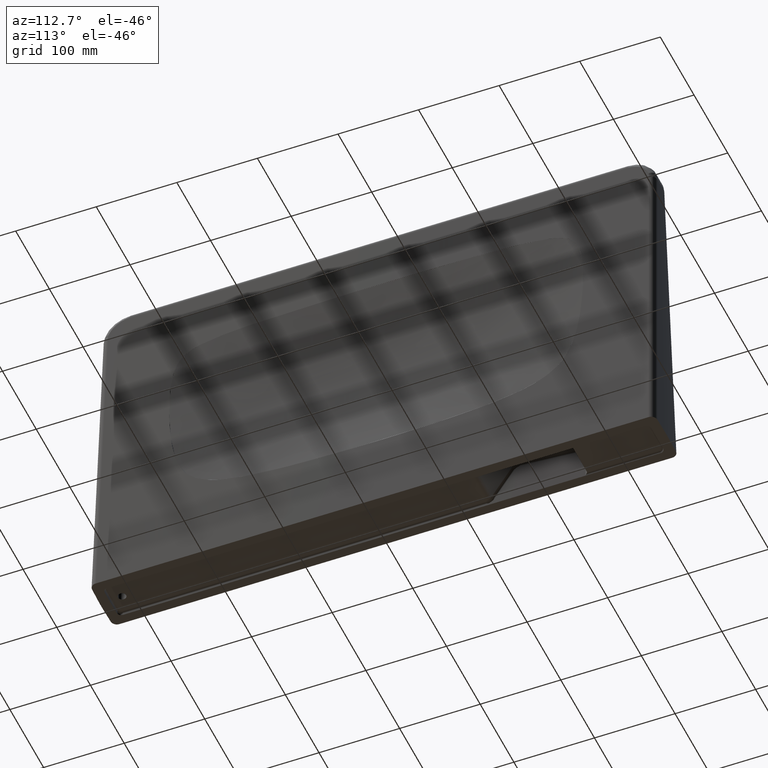
[diagram: clean part render]
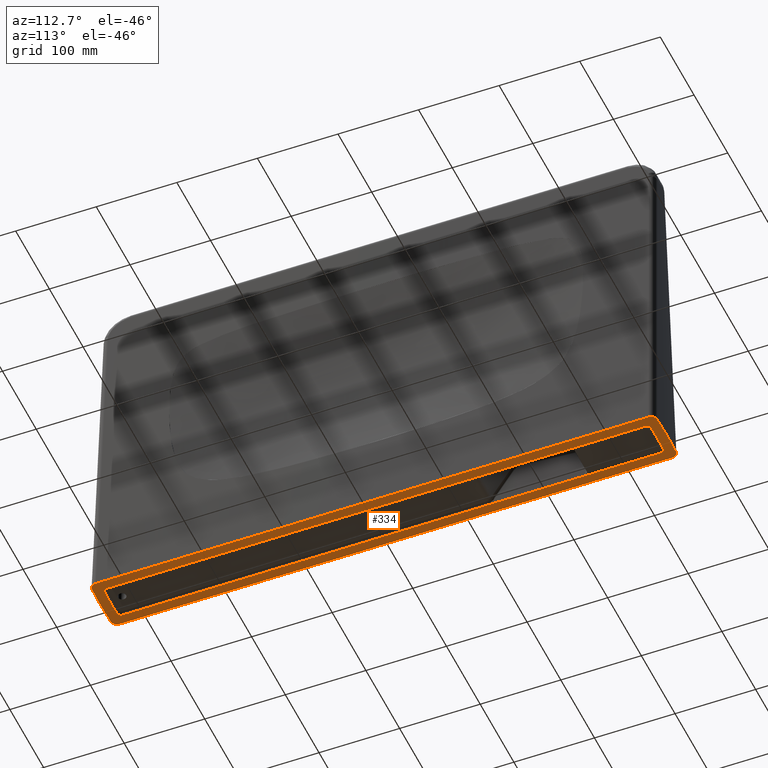
[diagram: same view with one face highlighted and labeled with its STEP entity id]
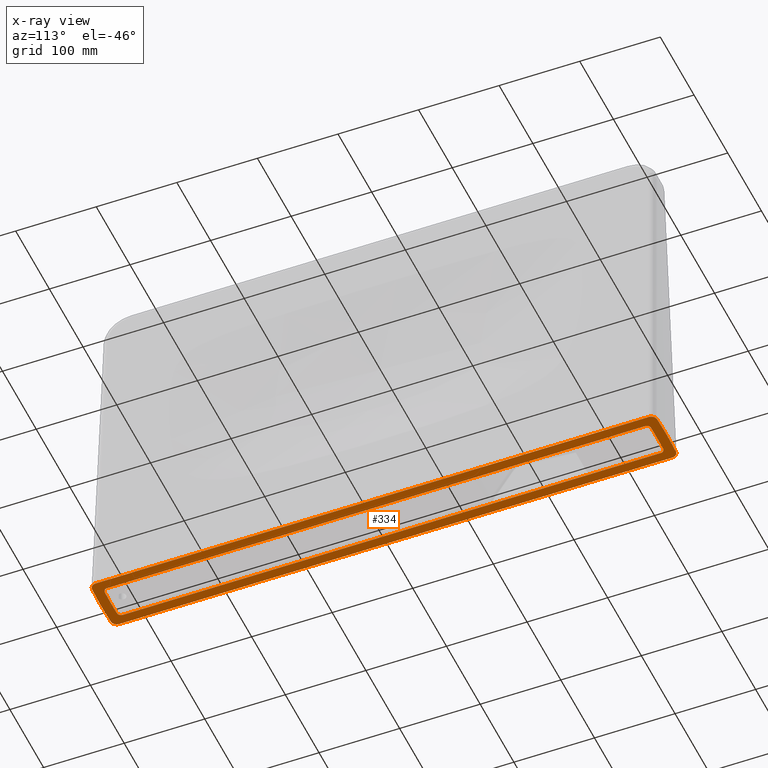
[diagram: x-ray of the same camera — body ghosted, the highlighted face saturated]
A machine part, auxiliary view. The second image highlights one B-rep face of the part: STEP entity #334.
The next image is the same camera in x-ray: the body ghosted, the highlighted face saturated — about 0% of this face is hidden behind the body in this view.
In plain terms, the highlighted planar face has unit normal (0, 0, -1).
Its self-contained STEP definition (entity closure, byte-faithful):
#195=FACE_BOUND('',#598,.T.);
#196=FACE_BOUND('',#599,.T.);
#214=B_SPLINE_CURVE_WITH_KNOTS('',3,(#2850,#2851,#2852,#2853),
 .UNSPECIFIED.,.F.,.F.,(4,4),(0.,1.),.UNSPECIFIED.);
#216=B_SPLINE_CURVE_WITH_KNOTS('',3,(#2997,#2998,#2999,#3000),
 .UNSPECIFIED.,.F.,.F.,(4,4),(0.,1.),.UNSPECIFIED.);
#236=CIRCLE('',#2009,5.);
#238=CIRCLE('',#2014,5.);
#242=CIRCLE('',#2042,5.);
#243=CIRCLE('',#2043,5.);
#334=ADVANCED_FACE('',(#195,#196),#452,.T.);
#452=PLANE('',#2044);
#598=EDGE_LOOP('',(#852,#853,#854,#855,#856,#857,#858,#859,#860,#861,#862,
#863));
#599=EDGE_LOOP('',(#864,#865,#866,#867,#868,#869,#870,#871,#872,#873,#874,
#875));
#729=ELLIPSE('',#2032,350.061613808211,350.);
#732=ELLIPSE('',#2037,7.50830832568396,7.5);
#733=ELLIPSE('',#2038,7.50830832568396,7.5);
#734=ELLIPSE('',#2039,350.061613808211,350.);
#735=ELLIPSE('',#2040,7.50830832568396,7.5);
#736=ELLIPSE('',#2041,7.50830832568396,7.5);
#852=ORIENTED_EDGE('',*,*,#1543,.T.);
#853=ORIENTED_EDGE('',*,*,#1558,.T.);
#854=ORIENTED_EDGE('',*,*,#1559,.F.);
#855=ORIENTED_EDGE('',*,*,#1560,.T.);
#856=ORIENTED_EDGE('',*,*,#1561,.T.);
#857=ORIENTED_EDGE('',*,*,#1562,.T.);
#858=ORIENTED_EDGE('',*,*,#1563,.F.);
#859=ORIENTED_EDGE('',*,*,#1564,.T.);
#860=ORIENTED_EDGE('',*,*,#1565,.T.);
#861=ORIENTED_EDGE('',*,*,#1566,.T.);
#862=ORIENTED_EDGE('',*,*,#1547,.F.);
#863=ORIENTED_EDGE('',*,*,#1555,.T.);
#864=ORIENTED_EDGE('',*,*,#1567,.T.);
#865=ORIENTED_EDGE('',*,*,#1568,.T.);
#866=ORIENTED_EDGE('',*,*,#1569,.T.);
#867=ORIENTED_EDGE('',*,*,#1570,.T.);
#868=ORIENTED_EDGE('',*,*,#1571,.T.);
#869=ORIENTED_EDGE('',*,*,#1486,.T.);
#870=ORIENTED_EDGE('',*,*,#1499,.T.);
#871=ORIENTED_EDGE('',*,*,#1502,.T.);
#872=ORIENTED_EDGE('',*,*,#1505,.T.);
#873=ORIENTED_EDGE('',*,*,#1508,.T.);
#874=ORIENTED_EDGE('',*,*,#1511,.T.);
#875=ORIENTED_EDGE('',*,*,#1524,.T.);
#1324=VERTEX_POINT('',#2808);
#1325=VERTEX_POINT('',#2810);
#1336=VERTEX_POINT('',#2834);
#1338=VERTEX_POINT('',#2840);
#1340=VERTEX_POINT('',#2849);
#1342=VERTEX_POINT('',#2865);
#1344=VERTEX_POINT('',#2871);
#1356=VERTEX_POINT('',#2897);
#1366=VERTEX_POINT('',#2929);
#1375=VERTEX_POINT('',#2946);
#1379=VERTEX_POINT('',#2955);
#1380=VERTEX_POINT('',#2957);
#1386=VERTEX_POINT('',#2977);
#1387=VERTEX_POINT('',#2979);
#1388=VERTEX_POINT('',#2981);
#1389=VERTEX_POINT('',#2983);
#1390=VERTEX_POINT('',#2985);
#1391=VERTEX_POINT('',#2987);
#1392=VERTEX_POINT('',#2989);
#1393=VERTEX_POINT('',#2991);
#1394=VERTEX_POINT('',#2994);
#1395=VERTEX_POINT('',#2996);
#1396=VERTEX_POINT('',#3001);
#1397=VERTEX_POINT('',#3003);
#1486=EDGE_CURVE('',#1325,#1324,#1763,.T.);
#1499=EDGE_CURVE('',#1324,#1336,#236,.T.);
#1502=EDGE_CURVE('',#1336,#1338,#1773,.T.);
#1505=EDGE_CURVE('',#1338,#1340,#214,.T.);
#1508=EDGE_CURVE('',#1340,#1342,#1777,.T.);
#1511=EDGE_CURVE('',#1342,#1344,#238,.T.);
#1524=EDGE_CURVE('',#1344,#1356,#1787,.T.);
#1543=EDGE_CURVE('',#1366,#1375,#1800,.T.);
#1547=EDGE_CURVE('',#1379,#1380,#1803,.T.);
#1555=EDGE_CURVE('',#1379,#1366,#729,.T.);
#1558=EDGE_CURVE('',#1375,#1386,#732,.T.);
#1559=EDGE_CURVE('',#1387,#1386,#1809,.T.);
#1560=EDGE_CURVE('',#1387,#1388,#733,.T.);
#1561=EDGE_CURVE('',#1388,#1389,#1810,.T.);
#1562=EDGE_CURVE('',#1389,#1390,#734,.T.);
#1563=EDGE_CURVE('',#1391,#1390,#1811,.T.);
#1564=EDGE_CURVE('',#1391,#1392,#735,.T.);
#1565=EDGE_CURVE('',#1392,#1393,#1812,.T.);
#1566=EDGE_CURVE('',#1393,#1380,#736,.T.);
#1567=EDGE_CURVE('',#1356,#1394,#242,.T.);
#1568=EDGE_CURVE('',#1394,#1395,#1813,.T.);
#1569=EDGE_CURVE('',#1395,#1396,#216,.T.);
#1570=EDGE_CURVE('',#1396,#1397,#1814,.T.);
#1571=EDGE_CURVE('',#1397,#1325,#243,.T.);
#1763=LINE('',#2809,#1884);
#1773=LINE('',#2841,#1894);
#1777=LINE('',#2866,#1898);
#1787=LINE('',#2898,#1908);
#1800=LINE('',#2947,#1921);
#1803=LINE('',#2956,#1924);
#1809=LINE('',#2978,#1930);
#1810=LINE('',#2982,#1931);
#1811=LINE('',#2986,#1932);
#1812=LINE('',#2990,#1933);
#1813=LINE('',#2995,#1934);
#1814=LINE('',#3002,#1935);
#1884=VECTOR('',#2233,1.);
#1894=VECTOR('',#2259,1.);
#1898=VECTOR('',#2265,1.);
#1908=VECTOR('',#2291,1.);
#1921=VECTOR('',#2318,1.);
#1924=VECTOR('',#2325,1.);
#1930=VECTOR('',#2349,1.);
#1931=VECTOR('',#2352,1.);
#1932=VECTOR('',#2355,1.);
#1933=VECTOR('',#2358,1.);
#1934=VECTOR('',#2363,1.);
#1935=VECTOR('',#2364,1.);
#2009=AXIS2_PLACEMENT_3D('',#2835,#2253,#2254);
#2014=AXIS2_PLACEMENT_3D('',#2872,#2271,#2272);
#2032=AXIS2_PLACEMENT_3D('',#2971,#2337,#2338);
#2037=AXIS2_PLACEMENT_3D('',#2976,#2347,#2348);
#2038=AXIS2_PLACEMENT_3D('',#2980,#2350,#2351);
#2039=AXIS2_PLACEMENT_3D('',#2984,#2353,#2354);
#2040=AXIS2_PLACEMENT_3D('',#2988,#2356,#2357);
#2041=AXIS2_PLACEMENT_3D('',#2992,#2359,#2360);
#2042=AXIS2_PLACEMENT_3D('',#2993,#2361,#2362);
#2043=AXIS2_PLACEMENT_3D('',#3004,#2365,#2366);
#2044=AXIS2_PLACEMENT_3D('',#3005,#2367,#2368);
#2233=DIRECTION('',(-1.03900545124596E-016,1.,0.));
#2253=DIRECTION('',(0.,0.,1.));
#2254=DIRECTION('',(1.,0.,0.));
#2259=DIRECTION('',(-0.999657204378326,0.0261815533250038,0.));
#2265=DIRECTION('',(-0.999657204378326,-0.0261815533250037,0.));
#2271=DIRECTION('',(0.,0.,1.));
#2272=DIRECTION('',(1.,0.,0.));
#2291=DIRECTION('',(-1.09095572380826E-016,-1.,0.));
#2318=DIRECTION('',(-0.999657204378326,0.0261815533250036,0.));
#2325=DIRECTION('',(0.999657204378326,0.0261815533250036,0.));
#2337=DIRECTION('',(0.,0.,-1.));
#2338=DIRECTION('',(0.,1.,0.));
#2347=DIRECTION('',(0.,0.,-1.));
#2348=DIRECTION('',(0.927324525944989,0.374258231146493,0.));
#2349=DIRECTION('',(-1.01414603210952E-016,-1.,0.));
#2350=DIRECTION('',(0.,0.,-1.));
#2351=DIRECTION('',(-0.927324525944989,0.374258231146493,0.));
#2352=DIRECTION('',(0.999657204378326,0.0261815533250036,0.));
#2353=DIRECTION('',(0.,0.,-1.));
#2354=DIRECTION('',(0.,-1.,0.));
#2355=DIRECTION('',(-0.999657204378326,0.0261815533250036,0.));
#2356=DIRECTION('',(0.,0.,-1.));
#2357=DIRECTION('',(0.927324525944989,0.374258231146493,0.));
#2358=DIRECTION('',(1.01414603210952E-016,-1.,0.));
#2359=DIRECTION('',(0.,0.,-1.));
#2360=DIRECTION('',(-0.927324525944989,0.374258231146493,0.));
#2361=DIRECTION('',(0.,0.,1.));
#2362=DIRECTION('',(1.,0.,0.));
#2363=DIRECTION('',(0.999657204378326,-0.0261815533250088,0.));
#2364=DIRECTION('',(0.999657204378326,0.0261815533250088,0.));
#2365=DIRECTION('',(0.,0.,1.));
#2366=DIRECTION('',(1.,0.,0.));
#2367=DIRECTION('',(0.,0.,-1.));
#2368=DIRECTION('',(-1.,0.,0.));
#2808=CARTESIAN_POINT('',(123.926083665237,40.4199951061946,-25.));
#2809=CARTESIAN_POINT('',(123.926083665237,-627.419995106194,-25.));
#2810=CARTESIAN_POINT('',(123.926083665237,-627.419995106194,-25.));
#2834=CARTESIAN_POINT('',(119.056991431862,45.4182811280862,-25.));
#2835=CARTESIAN_POINT('',(118.926083665237,40.4199951061946,-25.));
#2840=CARTESIAN_POINT('',(109.722753267856,45.6627497851107,-25.));
#2841=CARTESIAN_POINT('',(119.056991431862,45.4182811280862,-25.));
#2849=CARTESIAN_POINT('',(92.0272467321446,45.6627497851107,-25.));
#2850=CARTESIAN_POINT('',(109.722753267856,45.6627497851114,-25.0000000000195));
#2851=CARTESIAN_POINT('',(103.826272306249,45.8171817542943,-25.0000000000195));
#2852=CARTESIAN_POINT('',(97.9237276934547,45.8171817544509,-25.0000000000195));
#2853=CARTESIAN_POINT('',(92.0272467321446,45.6627497851114,-25.0000000000195));
#2865=CARTESIAN_POINT('',(82.6930085681376,45.4182811280862,-25.));
#2866=CARTESIAN_POINT('',(92.0272467321444,45.6627497851107,-25.));
#2871=CARTESIAN_POINT('',(77.8239163347626,40.4199951061946,-25.));
#2872=CARTESIAN_POINT('',(82.8239163347626,40.4199951061946,-25.));
#2897=CARTESIAN_POINT('',(77.8239163347625,-627.419995106195,-25.));
#2898=CARTESIAN_POINT('',(77.8239163347626,40.4199951061946,-25.));
#2929=CARTESIAN_POINT('',(91.7130680922444,-644.658636237651,-25.));
#2946=CARTESIAN_POINT('',(73.1285929497249,-644.171898959282,-25.));
#2947=CARTESIAN_POINT('',(85.559638659314,-644.497474651334,-25.));
#2955=CARTESIAN_POINT('',(110.036931907756,-644.658636237651,-25.));
#2956=CARTESIAN_POINT('',(61.59333817091,-645.927399696885,-25.));
#2957=CARTESIAN_POINT('',(128.621407050275,-644.171898959282,-25.));
#2971=CARTESIAN_POINT('',(100.875,-294.716979801507,-25.));
#2976=CARTESIAN_POINT('',(73.3310614734875,-636.673310025336,-25.));
#2977=CARTESIAN_POINT('',(65.8239163347625,-636.679074683376,-25.));
#2978=CARTESIAN_POINT('',(65.8239163347625,-618.5,-25.));
#2979=CARTESIAN_POINT('',(65.8239163347626,49.6790746833766,-25.));
#2980=CARTESIAN_POINT('',(73.3310614734875,49.6733100253362,-25.));
#2981=CARTESIAN_POINT('',(73.1285929497249,57.1718989592816,-25.));
#2982=CARTESIAN_POINT('',(43.1993237657999,56.3880354972015,-25.));
#2983=CARTESIAN_POINT('',(91.7130680922444,57.6586362376506,-25.));
#2984=CARTESIAN_POINT('',(100.875,-292.283020198493,-25.));
#2985=CARTESIAN_POINT('',(110.036931907756,57.6586362376506,-25.));
#2986=CARTESIAN_POINT('',(136.548043845877,56.9642961299887,-25.));
#2987=CARTESIAN_POINT('',(128.621407050275,57.1718989592816,-25.));
#2988=CARTESIAN_POINT('',(128.418938526512,49.6733100253362,-25.));
#2989=CARTESIAN_POINT('',(135.926083665237,49.6790746833766,-25.));
#2990=CARTESIAN_POINT('',(135.926083665237,31.5,-25.));
#2991=CARTESIAN_POINT('',(135.926083665237,-636.679074683376,-25.));
#2992=CARTESIAN_POINT('',(128.418938526513,-636.673310025336,-25.));
#2993=CARTESIAN_POINT('',(82.8239163347625,-627.419995106195,-25.));
#2994=CARTESIAN_POINT('',(82.6930085681375,-632.418281128086,-25.));
#2995=CARTESIAN_POINT('',(82.6930085681375,-632.418281128086,-25.));
#2996=CARTESIAN_POINT('',(92.0272467321444,-632.662749785111,-25.));
#2997=CARTESIAN_POINT('',(92.0272467321445,-632.662749785111,-25.0000000000196));
#2998=CARTESIAN_POINT('',(97.9237276951665,-632.817181755068,-25.0000000000196));
#2999=CARTESIAN_POINT('',(103.826272305129,-632.81718175506,-25.0000000000196));
#3000=CARTESIAN_POINT('',(109.722753267855,-632.662749785111,-25.0000000000196));
#3001=CARTESIAN_POINT('',(109.722753267855,-632.66274978511,-25.));
#3002=CARTESIAN_POINT('',(109.722753267856,-632.66274978511,-25.));
#3003=CARTESIAN_POINT('',(119.056991431862,-632.418281128086,-25.));
#3004=CARTESIAN_POINT('',(118.926083665237,-627.419995106194,-25.));
#3005=CARTESIAN_POINT('',(60.875,-618.5,-25.));